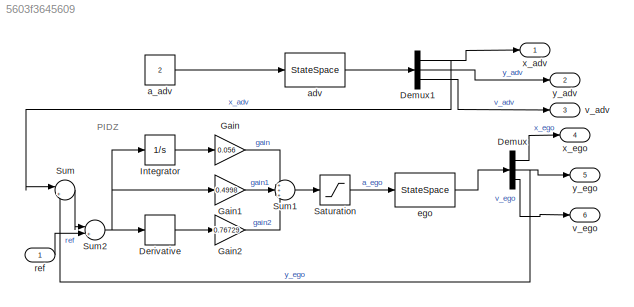
MODEL slx_5603f3645609
KIND model
CONFIG AbsTol = auto
CONFIG EnableMultiTasking = off
CONFIG FixedStep = auto
CONFIG MaxStep = auto
CONFIG MinStep = auto
CONFIG RelTol = 1e-3
CONFIG SampleTimeConstraint = Unconstrained
CONFIG Solver = VariableStepAuto
CONFIG SolverName = VariableStepAuto
CONFIG StartTime = 0.0
CONFIG StopTime = tspan(end)
BLOCK [Demux] Demux
  Outputs = 3
  Ports = [1, 3]
BLOCK [Demux] Demux1
  Outputs = 3
  Ports = [1, 3]
BLOCK [Derivative] Derivative
BLOCK [Gain] Gain
  Gain = 0.056
BLOCK [Gain] Gain1
  Gain = 0.4998
BLOCK [Gain] Gain2
  Gain = 0.76729
BLOCK [Integrator] Integrator
  InitialCondition = 0.001
  Ports = [1, 1]
BLOCK [Saturate] Saturation
  LowerLimit = 0
  UpperLimit = 15
  ZeroCross = off
BLOCK [Sum] Sum
  Inputs = |+-
  Ports = [2, 1]
BLOCK [Sum] Sum1
  Inputs = +++
  Ports = [3, 1]
BLOCK [Sum] Sum2
  Inputs = |++
  Ports = [2, 1]
BLOCK [Constant] a_adv
  Value = 2
BLOCK [StateSpace] adv
  A = [0 0 1 ; 0 0 0; 0 0 0]
  B = [0; 0; 1]
  C = [1 0 0;0 1 0; 0 0 1]
  D = zeros(3,1)
  InitialCondition = [-1;0;0]
  Ports = [1, 1]
BLOCK [StateSpace] ego
  A = [0 0 0 ; 0 0 1; 0 0 0]
  B = [0; 0; 1]
  C = [1 0 0 ; 0 1 0; 0 0 1]
  D = zeros(3,1)
  InitialCondition = [0; -1; 0];
  Ports = [1, 1]
BLOCK [Inport] ref
BLOCK [Outport] v_adv
  Port = 3
BLOCK [Outport] v_ego
  Port = 6
BLOCK [Outport] x_adv
BLOCK [Outport] x_ego
  Port = 4
BLOCK [Outport] y_adv
  Port = 2
BLOCK [Outport] y_ego
  Port = 5
ANNOTATION (root): PIDZ
NET Demux1:1 -> Sum:1, x_adv:1
LINE Demux1:2 -> y_adv:1
LINE Demux1:3 -> v_adv:1
LINE Demux:1 -> x_ego:1
NET Demux:2 -> Sum:2, y_ego:1
LINE Demux:3 -> v_ego:1
LINE Derivative:1 -> Gain2:1
LINE Gain1:1 -> Sum1:2
LINE Gain2:1 -> Sum1:3
LINE Gain:1 -> Sum1:1
LINE Integrator:1 -> Gain:1
LINE Saturation:1 -> ego:1
LINE Sum1:1 -> Saturation:1
NET Sum2:1 -> Derivative:1, Gain1:1, Integrator:1
LINE Sum:1 -> Sum2:1
LINE a_adv:1 -> adv:1
LINE adv:1 -> Demux1:1
LINE ego:1 -> Demux:1
LINE ref:1 -> Sum2:2
note: NET lines group one-source signal fan-out (src -> all destinations, sorted); 1:1 wires keep LINE
